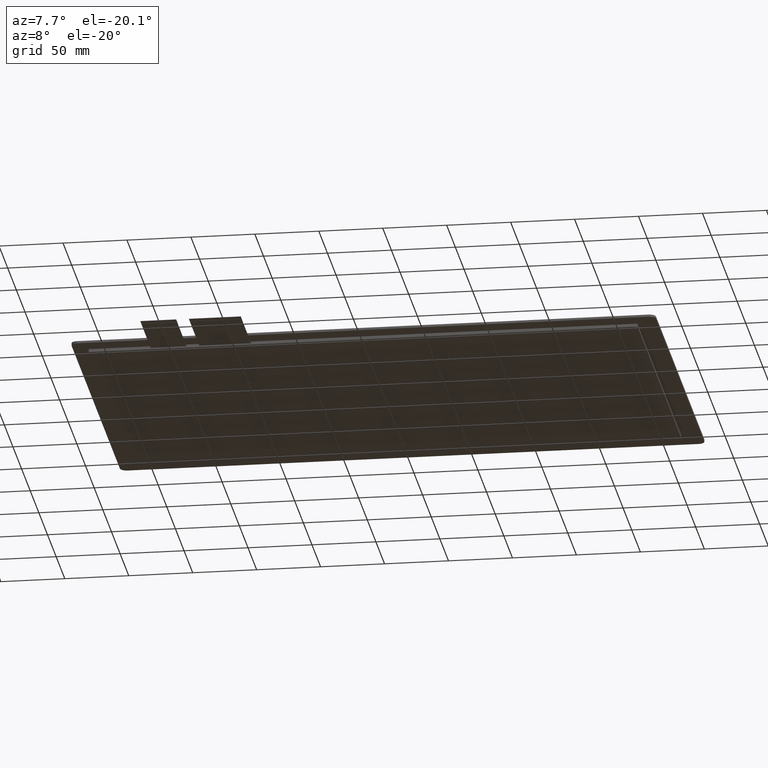
[diagram: clean part render]
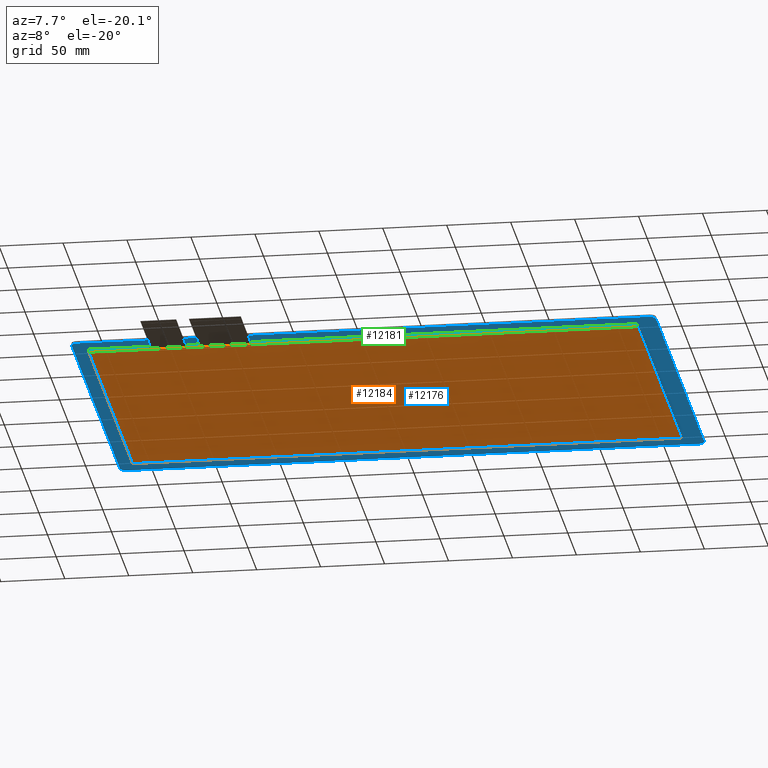
[diagram: same view with three faces highlighted in distinct colors, each labeled with its STEP entity id]
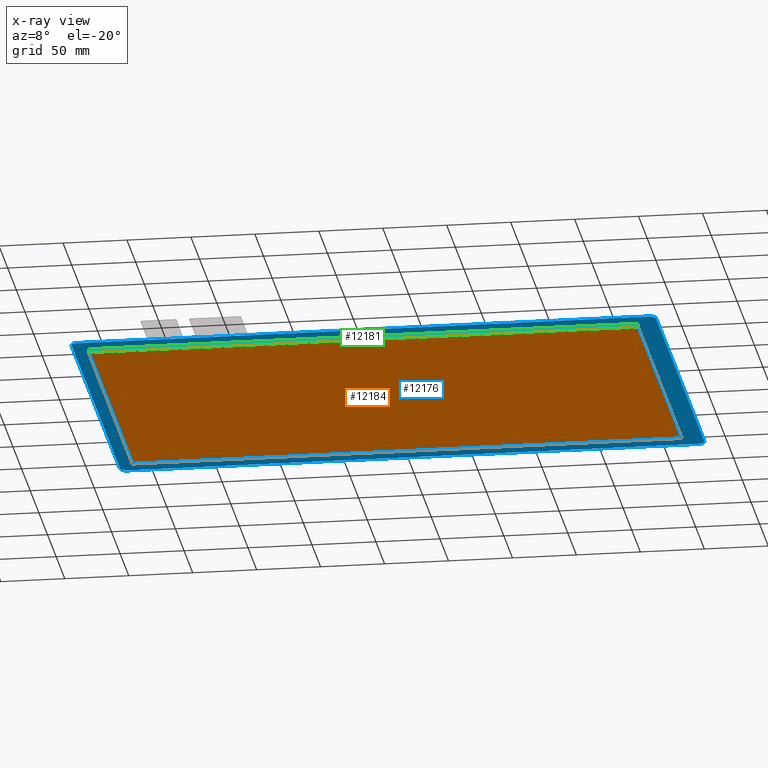
[diagram: x-ray of the same camera — body ghosted, the three highlighted faces saturated]
A machine part, auxiliary view with three faces highlighted in distinct colors.
The next image is the same camera in x-ray (body ghosted, the three faces saturated) — at least one of them is partly hidden behind the body in this view.
Their STEP definitions:

[orange] entity #12184 — the highlighted planar face has unit normal (0, 0, -1).
#620=PLANE('',#12806);
#1204=FACE_OUTER_BOUND('',#1792,.T.);
#1792=EDGE_LOOP('',(#11571,#11572,#11573,#11574));
#3496=LINE('',#19165,#5212);
#3498=LINE('',#19169,#5214);
#3500=LINE('',#19173,#5216);
#3502=LINE('',#19176,#5218);
#5212=VECTOR('',#15692,10.);
#5214=VECTOR('',#15696,10.);
#5216=VECTOR('',#15700,10.);
#5218=VECTOR('',#15704,10.);
#6391=VERTEX_POINT('',#19162);
#6392=VERTEX_POINT('',#19164);
#6393=VERTEX_POINT('',#19168);
#6394=VERTEX_POINT('',#19172);
#8116=EDGE_CURVE('',#6392,#6391,#3496,.T.);
#8118=EDGE_CURVE('',#6393,#6392,#3498,.T.);
#8120=EDGE_CURVE('',#6394,#6393,#3500,.T.);
#8122=EDGE_CURVE('',#6391,#6394,#3502,.T.);
#11571=ORIENTED_EDGE('',*,*,#8122,.T.);
#11572=ORIENTED_EDGE('',*,*,#8120,.T.);
#11573=ORIENTED_EDGE('',*,*,#8118,.T.);
#11574=ORIENTED_EDGE('',*,*,#8116,.T.);
#12184=ADVANCED_FACE('',(#1204),#620,.T.);
#12806=AXIS2_PLACEMENT_3D('',#19177,#15705,#15706);
#15692=DIRECTION('',(-2.80292992410296E-16,1.,0.));
#15696=DIRECTION('',(-1.,-1.24220758000017E-16,0.));
#15700=DIRECTION('',(0.,-1.,0.));
#15704=DIRECTION('',(1.,0.,0.));
#15705=DIRECTION('center_axis',(0.,0.,-1.));
#15706=DIRECTION('ref_axis',(-1.,0.,0.));
#19162=CARTESIAN_POINT('',(-216.3,123.,-2.5));
#19164=CARTESIAN_POINT('',(-216.3,-130.5,-2.5));
#19165=CARTESIAN_POINT('',(-216.3,123.,-2.5));
#19168=CARTESIAN_POINT('',(212.7,-130.5,-2.5));
#19169=CARTESIAN_POINT('',(-216.3,-130.5,-2.5));
#19172=CARTESIAN_POINT('',(212.7,123.,-2.5));
#19173=CARTESIAN_POINT('',(212.7,-130.5,-2.5));
#19176=CARTESIAN_POINT('',(212.7,123.,-2.5));
#19177=CARTESIAN_POINT('Origin',(-1.80000000000003,-3.75,-2.5));

[blue] entity #12176 — the highlighted planar face has unit normal (0, 0, 1).
#32=FACE_BOUND('',#1782,.T.);
#612=PLANE('',#12798);
#1196=FACE_OUTER_BOUND('',#1781,.T.);
#1781=EDGE_LOOP('',(#11523,#11524,#11525,#11526,#11527,#11528,#11529,#11530));
#1782=EDGE_LOOP('',(#11531,#11532,#11533,#11534));
#3475=LINE('',#19108,#5191);
#3485=LINE('',#19137,#5201);
#3489=LINE('',#19148,#5205);
#3490=LINE('',#19149,#5206);
#3491=LINE('',#19152,#5207);
#3492=LINE('',#19154,#5208);
#3493=LINE('',#19156,#5209);
#3494=LINE('',#19157,#5210);
#5191=VECTOR('',#15639,10.);
#5201=VECTOR('',#15663,10.);
#5205=VECTOR('',#15677,10.);
#5206=VECTOR('',#15678,10.);
#5207=VECTOR('',#15679,10.);
#5208=VECTOR('',#15680,10.);
#5209=VECTOR('',#15681,10.);
#5210=VECTOR('',#15682,10.);
#5240=CIRCLE('',#12785,5.);
#5244=CIRCLE('',#12792,5.);
#5245=CIRCLE('',#12795,5.);
#5246=CIRCLE('',#12797,5.);
#6369=VERTEX_POINT('',#19098);
#6370=VERTEX_POINT('',#19100);
#6372=VERTEX_POINT('',#19106);
#6382=VERTEX_POINT('',#19130);
#6383=VERTEX_POINT('',#19132);
#6384=VERTEX_POINT('',#19136);
#6385=VERTEX_POINT('',#19140);
#6386=VERTEX_POINT('',#19144);
#6387=VERTEX_POINT('',#19150);
#6388=VERTEX_POINT('',#19151);
#6389=VERTEX_POINT('',#19153);
#6390=VERTEX_POINT('',#19155);
#8085=EDGE_CURVE('',#6369,#6370,#5240,.T.);
#8089=EDGE_CURVE('',#6372,#6369,#3475,.T.);
#8101=EDGE_CURVE('',#6382,#6383,#5244,.T.);
#8103=EDGE_CURVE('',#6383,#6384,#3485,.T.);
#8105=EDGE_CURVE('',#6384,#6385,#5245,.T.);
#8108=EDGE_CURVE('',#6386,#6372,#5246,.T.);
#8109=EDGE_CURVE('',#6385,#6386,#3489,.T.);
#8110=EDGE_CURVE('',#6370,#6382,#3490,.T.);
#8111=EDGE_CURVE('',#6387,#6388,#3491,.T.);
#8112=EDGE_CURVE('',#6388,#6389,#3492,.T.);
#8113=EDGE_CURVE('',#6389,#6390,#3493,.T.);
#8114=EDGE_CURVE('',#6390,#6387,#3494,.T.);
#11523=ORIENTED_EDGE('',*,*,#8085,.F.);
#11524=ORIENTED_EDGE('',*,*,#8089,.F.);
#11525=ORIENTED_EDGE('',*,*,#8108,.F.);
#11526=ORIENTED_EDGE('',*,*,#8109,.F.);
#11527=ORIENTED_EDGE('',*,*,#8105,.F.);
#11528=ORIENTED_EDGE('',*,*,#8103,.F.);
#11529=ORIENTED_EDGE('',*,*,#8101,.F.);
#11530=ORIENTED_EDGE('',*,*,#8110,.F.);
#11531=ORIENTED_EDGE('',*,*,#8111,.T.);
#11532=ORIENTED_EDGE('',*,*,#8112,.T.);
#11533=ORIENTED_EDGE('',*,*,#8113,.T.);
#11534=ORIENTED_EDGE('',*,*,#8114,.T.);
#12176=ADVANCED_FACE('',(#1196,#32),#612,.F.);
#12785=AXIS2_PLACEMENT_3D('',#19101,#15632,#15633);
#12792=AXIS2_PLACEMENT_3D('',#19133,#15658,#15659);
#12795=AXIS2_PLACEMENT_3D('',#19141,#15667,#15668);
#12797=AXIS2_PLACEMENT_3D('',#19146,#15673,#15674);
#12798=AXIS2_PLACEMENT_3D('',#19147,#15675,#15676);
#15632=DIRECTION('center_axis',(0.,0.,1.));
#15633=DIRECTION('ref_axis',(0.707106781186547,0.707106781186547,0.));
#15639=DIRECTION('',(0.,1.,0.));
#15658=DIRECTION('center_axis',(0.,0.,1.));
#15659=DIRECTION('ref_axis',(-0.707106781186547,0.707106781186547,0.));
#15663=DIRECTION('',(1.22718952635596E-16,-1.,0.));
#15667=DIRECTION('center_axis',(0.,0.,1.));
#15668=DIRECTION('ref_axis',(-0.707106781186547,-0.707106781186547,0.));
#15673=DIRECTION('center_axis',(0.,0.,1.));
#15674=DIRECTION('ref_axis',(0.70710678118655,-0.707106781186545,0.));
#15675=DIRECTION('center_axis',(0.,0.,1.));
#15676=DIRECTION('ref_axis',(1.,0.,0.));
#15677=DIRECTION('',(1.,1.16635380131336E-16,0.));
#15678=DIRECTION('',(-1.,3.88784600437787E-17,0.));
#15679=DIRECTION('',(2.80292992410296E-16,-1.,0.));
#15680=DIRECTION('',(1.,1.24220758000017E-16,0.));
#15681=DIRECTION('',(0.,1.,0.));
#15682=DIRECTION('',(-1.,0.,0.));
#19098=CARTESIAN_POINT('',(228.45,139.75,0.));
#19100=CARTESIAN_POINT('',(223.45,144.75,0.));
#19101=CARTESIAN_POINT('Origin',(223.45,139.75,0.));
#19106=CARTESIAN_POINT('',(228.45,-139.75,0.));
#19108=CARTESIAN_POINT('',(228.45,-144.75,0.));
#19130=CARTESIAN_POINT('',(-223.45,144.75,0.));
#19132=CARTESIAN_POINT('',(-228.45,139.75,0.));
#19133=CARTESIAN_POINT('Origin',(-223.45,139.75,0.));
#19136=CARTESIAN_POINT('',(-228.45,-139.75,0.));
#19137=CARTESIAN_POINT('',(-228.45,144.75,0.));
#19140=CARTESIAN_POINT('',(-223.45,-144.75,0.));
#19141=CARTESIAN_POINT('Origin',(-223.45,-139.75,0.));
#19144=CARTESIAN_POINT('',(223.45,-144.75,0.));
#19146=CARTESIAN_POINT('Origin',(223.45,-139.75,0.));
#19147=CARTESIAN_POINT('Origin',(-8.88178419700125E-14,1.77635683940025E-14,
0.));
#19148=CARTESIAN_POINT('',(-228.45,-144.75,0.));
#19149=CARTESIAN_POINT('',(228.45,144.75,0.));
#19150=CARTESIAN_POINT('',(-216.3,123.,0.));
#19151=CARTESIAN_POINT('',(-216.3,-130.5,0.));
#19152=CARTESIAN_POINT('',(-216.3,123.,0.));
#19153=CARTESIAN_POINT('',(212.7,-130.5,0.));
#19154=CARTESIAN_POINT('',(-216.3,-130.5,0.));
#19155=CARTESIAN_POINT('',(212.7,123.,0.));
#19156=CARTESIAN_POINT('',(212.7,-130.5,0.));
#19157=CARTESIAN_POINT('',(212.7,123.,0.));

[green] entity #12181 — the highlighted planar face has unit normal (0, -1, 0).
#33=FACE_BOUND('',#1788,.T.);
#34=FACE_BOUND('',#1789,.T.);
#617=PLANE('',#12803);
#1201=FACE_OUTER_BOUND('',#1787,.T.);
#1787=EDGE_LOOP('',(#11551,#11552,#11553,#11554));
#1788=EDGE_LOOP('',(#11555,#11556,#11557,#11558));
#1789=EDGE_LOOP('',(#11559,#11560,#11561,#11562));
#3444=LINE('',#19042,#5160);
#3449=LINE('',#19051,#5165);
#3453=LINE('',#19060,#5169);
#3464=LINE('',#19082,#5180);
#3466=LINE('',#19085,#5182);
#3467=LINE('',#19087,#5183);
#3468=LINE('',#19090,#5184);
#3470=LINE('',#19093,#5186);
#3492=LINE('',#19154,#5208);
#3497=LINE('',#19166,#5213);
#3498=LINE('',#19169,#5214);
#3499=LINE('',#19170,#5215);
#5160=VECTOR('',#15578,10.);
#5165=VECTOR('',#15585,10.);
#5169=VECTOR('',#15591,10.);
#5180=VECTOR('',#15612,10.);
#5182=VECTOR('',#15616,10.);
#5183=VECTOR('',#15619,10.);
#5184=VECTOR('',#15622,10.);
#5186=VECTOR('',#15626,10.);
#5208=VECTOR('',#15680,10.);
#5213=VECTOR('',#15693,10.);
#5214=VECTOR('',#15696,10.);
#5215=VECTOR('',#15697,10.);
#6351=VERTEX_POINT('',#19039);
#6352=VERTEX_POINT('',#19041);
#6355=VERTEX_POINT('',#19049);
#6358=VERTEX_POINT('',#19057);
#6359=VERTEX_POINT('',#19059);
#6364=VERTEX_POINT('',#19079);
#6365=VERTEX_POINT('',#19081);
#6366=VERTEX_POINT('',#19089);
#6388=VERTEX_POINT('',#19151);
#6389=VERTEX_POINT('',#19153);
#6392=VERTEX_POINT('',#19164);
#6393=VERTEX_POINT('',#19168);
#8056=EDGE_CURVE('',#6352,#6351,#3444,.T.);
#8061=EDGE_CURVE('',#6351,#6355,#3449,.T.);
#8065=EDGE_CURVE('',#6359,#6358,#3453,.T.);
#8076=EDGE_CURVE('',#6365,#6364,#3464,.T.);
#8078=EDGE_CURVE('',#6358,#6365,#3466,.T.);
#8079=EDGE_CURVE('',#6364,#6359,#3467,.T.);
#8080=EDGE_CURVE('',#6366,#6352,#3468,.T.);
#8082=EDGE_CURVE('',#6355,#6366,#3470,.T.);
#8112=EDGE_CURVE('',#6388,#6389,#3492,.T.);
#8117=EDGE_CURVE('',#6388,#6392,#3497,.T.);
#8118=EDGE_CURVE('',#6393,#6392,#3498,.T.);
#8119=EDGE_CURVE('',#6389,#6393,#3499,.T.);
#11551=ORIENTED_EDGE('',*,*,#8112,.F.);
#11552=ORIENTED_EDGE('',*,*,#8117,.T.);
#11553=ORIENTED_EDGE('',*,*,#8118,.F.);
#11554=ORIENTED_EDGE('',*,*,#8119,.F.);
#11555=ORIENTED_EDGE('',*,*,#8076,.T.);
#11556=ORIENTED_EDGE('',*,*,#8079,.T.);
#11557=ORIENTED_EDGE('',*,*,#8065,.T.);
#11558=ORIENTED_EDGE('',*,*,#8078,.T.);
#11559=ORIENTED_EDGE('',*,*,#8080,.T.);
#11560=ORIENTED_EDGE('',*,*,#8056,.T.);
#11561=ORIENTED_EDGE('',*,*,#8061,.T.);
#11562=ORIENTED_EDGE('',*,*,#8082,.T.);
#12181=ADVANCED_FACE('',(#1201,#33,#34),#617,.T.);
#12803=AXIS2_PLACEMENT_3D('',#19167,#15694,#15695);
#15578=DIRECTION('',(-1.,-1.24220758000017E-16,0.));
#15585=DIRECTION('',(0.,0.,1.));
#15591=DIRECTION('',(0.,0.,1.));
#15612=DIRECTION('',(0.,0.,-1.));
#15616=DIRECTION('',(1.,1.24220758000017E-16,0.));
#15619=DIRECTION('',(-1.,-1.24220758000017E-16,0.));
#15622=DIRECTION('',(0.,0.,-1.));
#15626=DIRECTION('',(1.,1.24220758000017E-16,0.));
#15680=DIRECTION('',(1.,1.24220758000017E-16,0.));
#15693=DIRECTION('',(0.,0.,-1.));
#15694=DIRECTION('center_axis',(1.24220758000017E-16,-1.,0.));
#15695=DIRECTION('ref_axis',(-1.,-1.24220758000017E-16,0.));
#15696=DIRECTION('',(-1.,-1.24220758000017E-16,0.));
#15697=DIRECTION('',(0.,0.,-1.));
#19039=CARTESIAN_POINT('',(-167.83,-130.5,-1.35));
#19041=CARTESIAN_POINT('',(-139.83,-130.5,-1.35));
#19042=CARTESIAN_POINT('',(29.435,-130.5,-1.35));
#19049=CARTESIAN_POINT('',(-167.83,-130.5,-1.25));
#19051=CARTESIAN_POINT('',(-167.83,-130.5,-0.625));
#19057=CARTESIAN_POINT('',(-129.83,-130.5,-1.25));
#19059=CARTESIAN_POINT('',(-129.83,-130.5,-1.35));
#19060=CARTESIAN_POINT('',(-129.83,-130.5,-0.625));
#19079=CARTESIAN_POINT('',(-89.3299999999999,-130.5,-1.35));
#19081=CARTESIAN_POINT('',(-89.3299999999999,-130.5,-1.25));
#19082=CARTESIAN_POINT('',(-89.3299999999999,-130.5,-0.625));
#19085=CARTESIAN_POINT('',(51.5600000000001,-130.5,-1.25));
#19087=CARTESIAN_POINT('',(51.5600000000001,-130.5,-1.35));
#19089=CARTESIAN_POINT('',(-139.83,-130.5,-1.25));
#19090=CARTESIAN_POINT('',(-139.83,-130.5,-0.625));
#19093=CARTESIAN_POINT('',(29.435,-130.5,-1.25));
#19151=CARTESIAN_POINT('',(-216.3,-130.5,0.));
#19153=CARTESIAN_POINT('',(212.7,-130.5,0.));
#19154=CARTESIAN_POINT('',(-216.3,-130.5,0.));
#19164=CARTESIAN_POINT('',(-216.3,-130.5,-2.5));
#19166=CARTESIAN_POINT('',(-216.3,-130.5,0.));
#19167=CARTESIAN_POINT('Origin',(212.7,-130.5,0.));
#19168=CARTESIAN_POINT('',(212.7,-130.5,-2.5));
#19169=CARTESIAN_POINT('',(-216.3,-130.5,-2.5));
#19170=CARTESIAN_POINT('',(212.7,-130.5,0.));